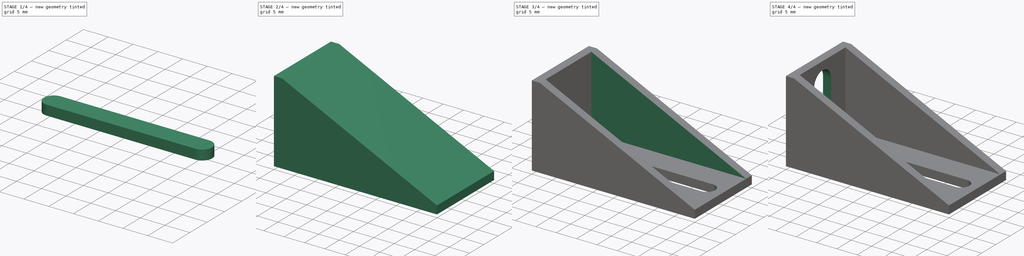
[diagram: build sequence overview — one tinted view per stage of 4, left to right]
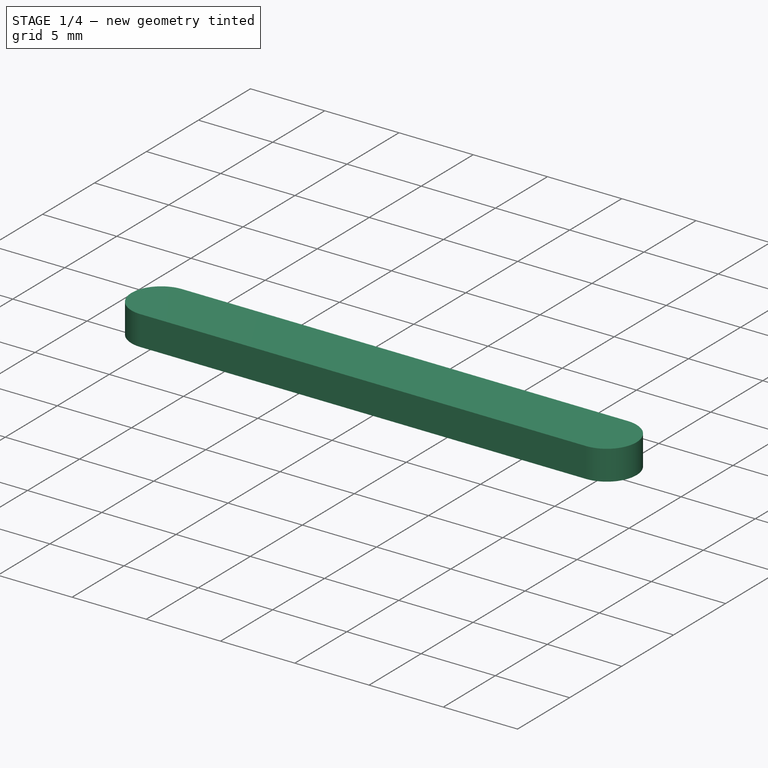
[diagram: stage 1 of 4 — iso view after this stage's code; geometry added in this stage tinted green]
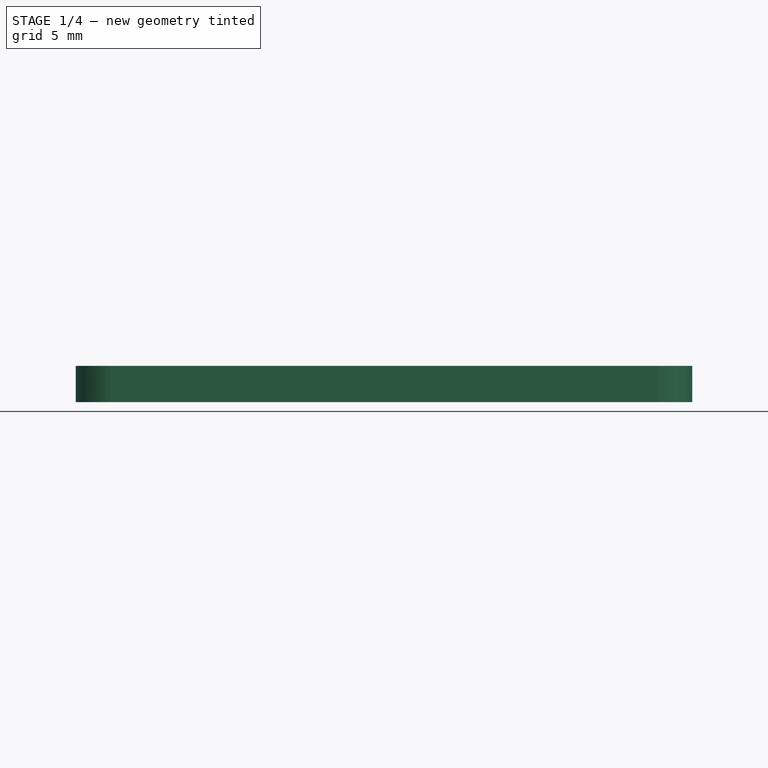
[diagram: stage 1 of 4 — front view after this stage's code; geometry added in this stage tinted green]
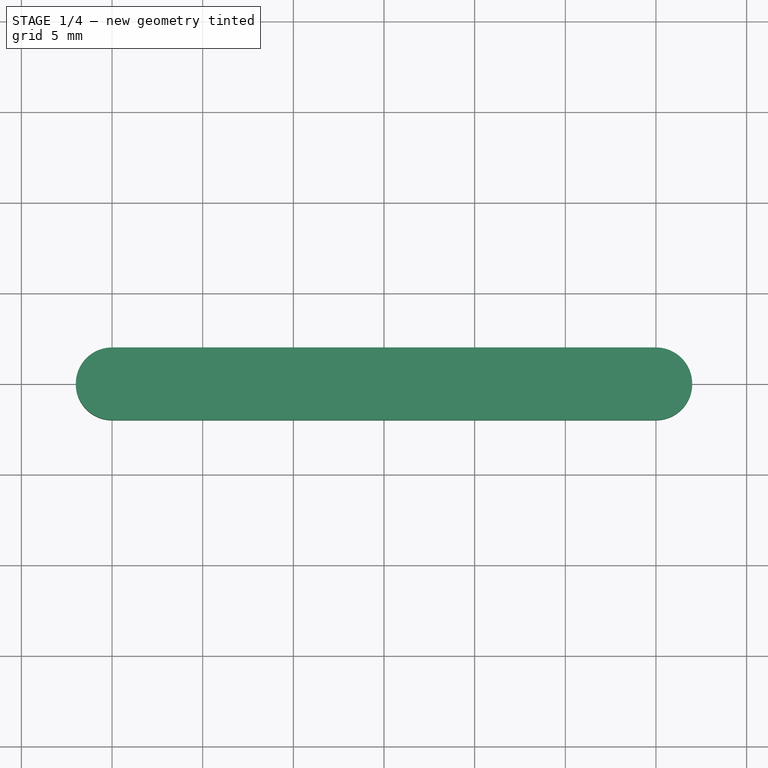
[diagram: stage 1 of 4 — top view after this stage's code; geometry added in this stage tinted green]
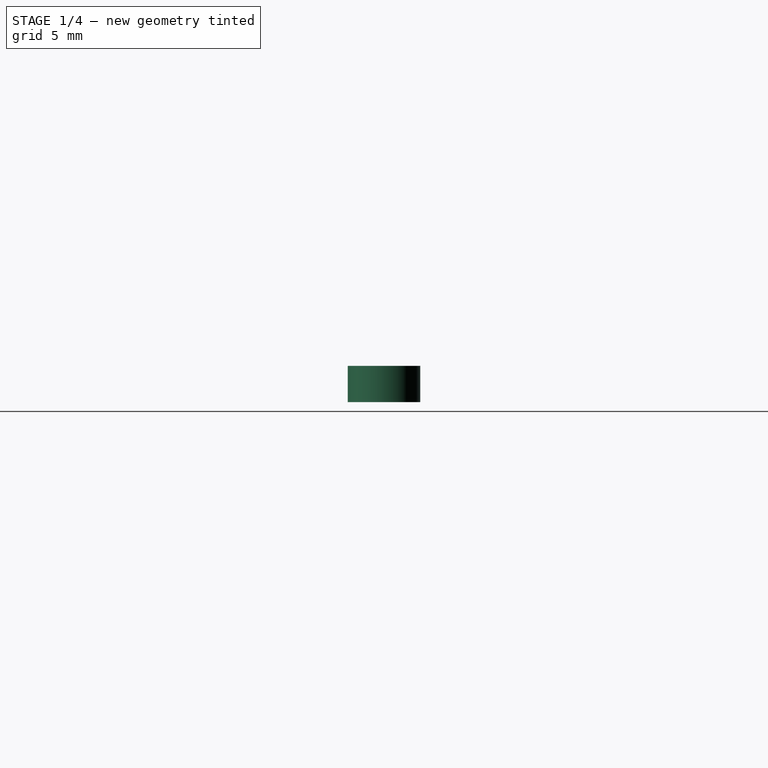
[diagram: stage 1 of 4 — right view after this stage's code; geometry added in this stage tinted green]
FCSTD DOCUMENT  (FreeCAD 0.21R33668 +7 (Git))
Label: ModularBracketLongHoles
License: All rights reserved
LicenseURL: https://en.wikipedia.org/wiki/All_rights_reserved
objects: Part::Cylinder×4, Part::Cut×3, Sketcher::SketchObject×2, PartDesign::Pad×2, PartDesign::Body×2, Part::Box×2, Part::MultiFuse×2, Spreadsheet::Sheet×1
note: 19 computed .brp shape members not serialized (recipe doc carries the construction recipe); baked Part::Feature solids carry a one-line shape summary decoded from their .brp

FEATURE [Part::Cylinder] Cylinder
  Angle = 360
  AttacherType = Attacher::AttachEngine3D
  FirstAngle = 0
  Height = 2
  Radius = 2
  SecondAngle = 0
  expr: Height = <<BracketConfiguration>>.thickness
  expr: Radius = <<BracketConfiguration>>.hd2 / 2
FEATURE [Part::Box] Box  label="Cube"
  AttacherType = Attacher::AttachEngine3D
  Height = 2
  Length = 30
  Placement = pos=(0,-2,0) rot=(0,0,1;0rad)
  Width = 4
  expr: .Placement.Base.y = -(<<BracketConfiguration>>.hd2 / 2)
  expr: Height = <<BracketConfiguration>>.thickness
  expr: Length = <<BracketConfiguration>>.l2 - 3 * <<BracketConfiguration>>.thickness - <<BracketConfiguration>>.hd2
  expr: Width = <<BracketConfiguration>>.hd2
FEATURE [Part::Cylinder] Cylinder001
  Angle = 360
  AttacherType = Attacher::AttachEngine3D
  FirstAngle = 0
  Height = 2
  Placement = pos=(30,0,0) rot=(0,0,1;0rad)
  Radius = 2
  SecondAngle = 0
  expr: .Placement.Base.x = <<BracketConfiguration>>.l2 - 3 * <<BracketConfiguration>>.thickness - <<BracketConfiguration>>.hd2
  expr: Height = <<BracketConfiguration>>.thickness
  expr: Radius = <<BracketConfiguration>>.hd2 / 2
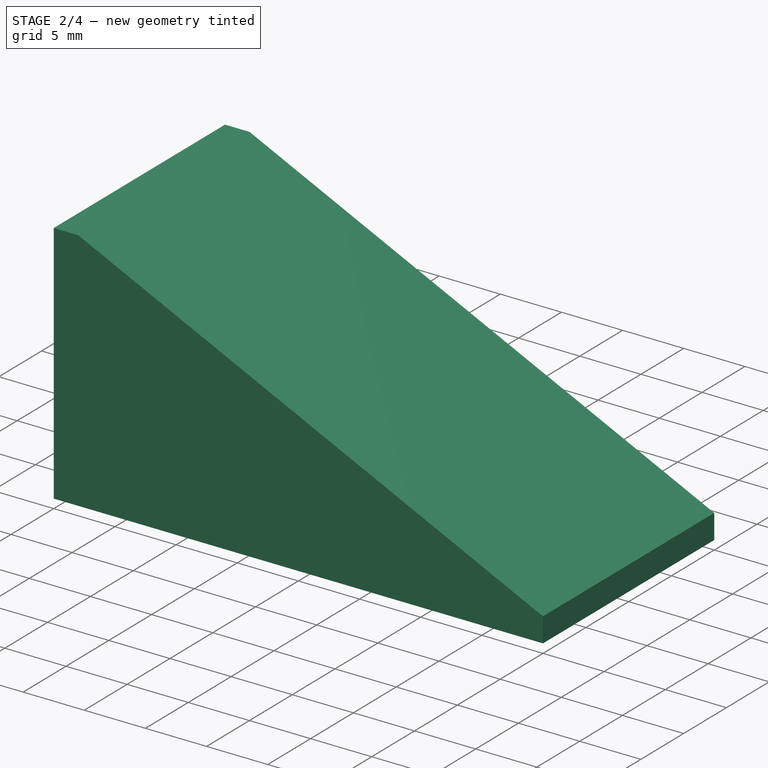
[diagram: stage 2 of 4 — iso view after this stage's code; geometry added in this stage tinted green]
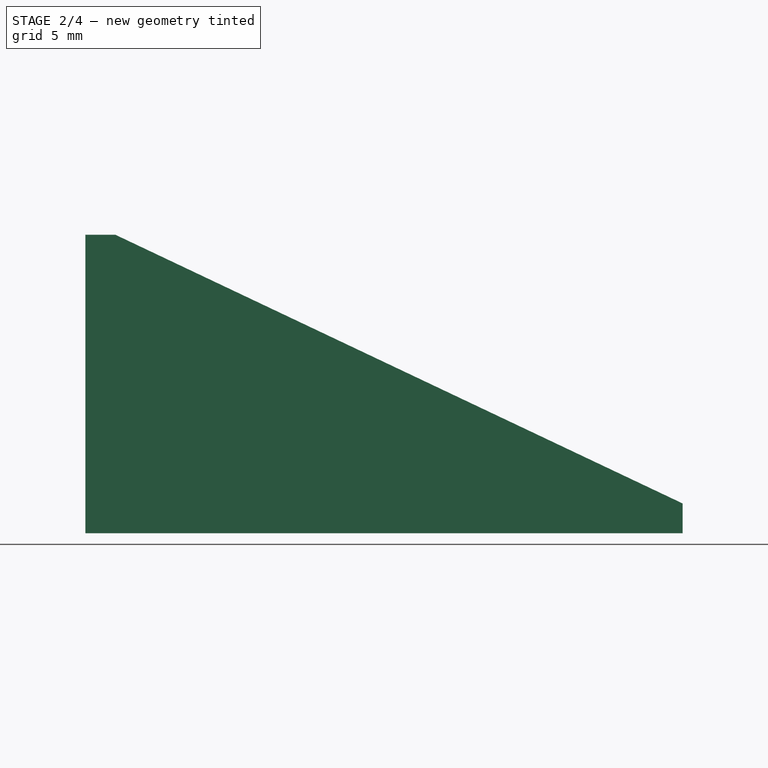
[diagram: stage 2 of 4 — front view after this stage's code; geometry added in this stage tinted green]
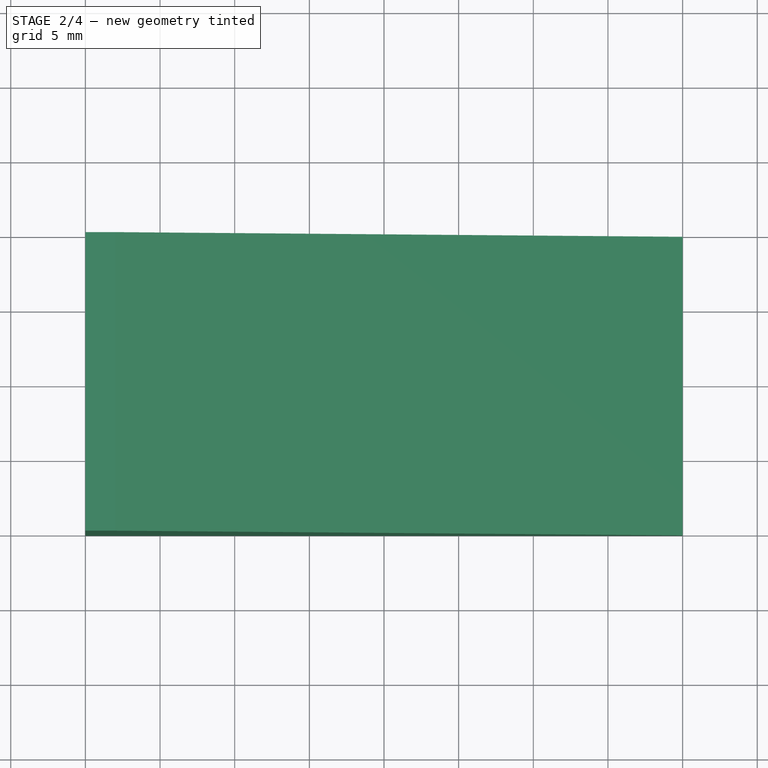
[diagram: stage 2 of 4 — top view after this stage's code; geometry added in this stage tinted green]
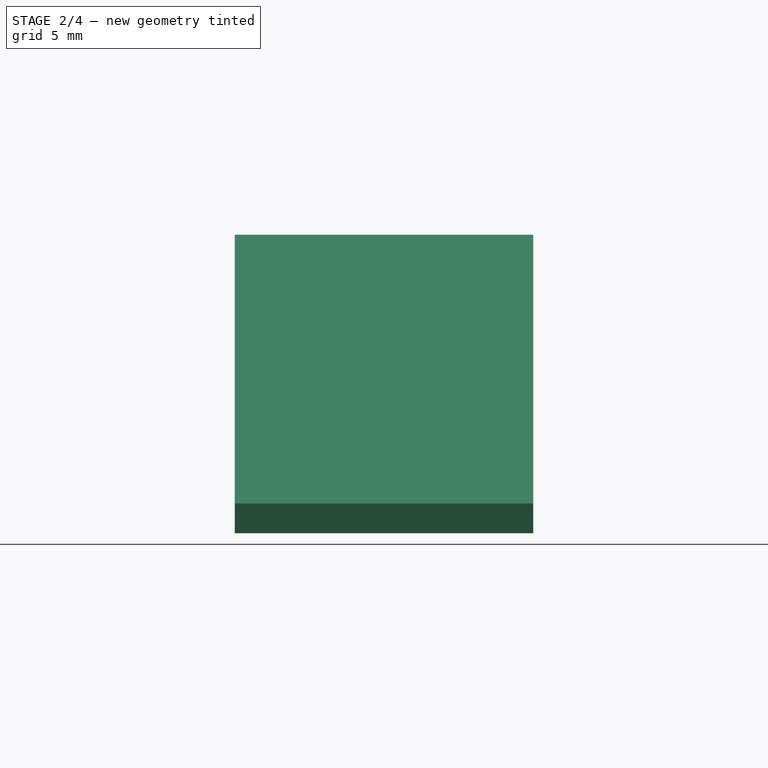
[diagram: stage 2 of 4 — right view after this stage's code; geometry added in this stage tinted green]
FEATURE [Spreadsheet::Sheet] Spreadsheet  label="BracketConfiguration"
  cells = A1='Parameters; A2='Width; B2(width)=20; C2='Total width (on the outside); A3='Length 1; B3(l1)=20; C3='Length in the vertical direction; A4='Length 2; B4(l2)=40; C4='Length in the horizontal direction; A5='Thickness; B5(thickness)=2; C5='Material thickness; A6='Hole diameter 1; B6(hd1)=6; C6='Screw hole diameter on vertical; A7='Hole diameter 2; B7(hd2)=4; C7='Screw hole diameter on horizontal
FEATURE [Sketcher::SketchObject] Sketch
  FullyConstrained = true
  MapMode = 5
  Placement = pos=(0,0,0) rot=(1,0,0;1.5708rad)
  Support = -> [XZ_Plane]
  expr: Constraints[10] = <<BracketConfiguration>>.l2
  expr: Constraints[11] = <<BracketConfiguration>>.l1
  sketch-geometry (5):
    g0: LineSegment StartX=0 StartY=20 StartZ=0 EndX=0 EndY=0 EndZ=0
    g1: LineSegment StartX=0 StartY=0 StartZ=0 EndX=40 EndY=0 EndZ=0
    g2: LineSegment StartX=40 StartY=0 StartZ=0 EndX=40 EndY=2 EndZ=0
    g3: LineSegment StartX=40 StartY=2 StartZ=0 EndX=2 EndY=20 EndZ=0
    g4: LineSegment StartX=2 StartY=20 StartZ=0 EndX=0 EndY=20 EndZ=0
  constraints (14):
    c: PointOnObject(g0,g-2)
    c: Coincident(g0,g-1)
    c: Coincident(g0,g1)
    c: PointOnObject(g1,g-1)
    c: Coincident(g1,g2)
    c: Vertical(g2)
    c: Coincident(g2,g3)
    c: Coincident(g3,g4)
    c: Coincident(g4,g0)
    c: Horizontal(g4)
    c: DistanceX(g1,g1) = 40
    c: DistanceY(g0,g0) = 20
    c: DistanceX(g4,g4) = 2
    c: DistanceY(g2,g2) = 2
FEATURE [PartDesign::Pad] Pad
  Direction = (0,-1,2e-16)
  Length = 20
  Length2 = 10
  Placement = pos=(0,0,0) rot=(1,0,0;1.5708rad)
  Profile = -> Sketch
  ReferenceAxis = -> Sketch [N_Axis]
  Type = 0
  expr: Length = <<BracketConfiguration>>.width
FEATURE [PartDesign::Body] Body
  Group = -> [Sketch,Pad]
  Origin = -> Origin
  Tip = -> Pad
FEATURE [Sketcher::SketchObject] Sketch001
  FullyConstrained = true
  MapMode = 5
  Placement = pos=(0,0,0) rot=(1,0,0;1.5708rad)
  Support = -> [XZ_Plane001]
  expr: Constraints[5] = <<BracketConfiguration>>.thickness
  expr: Constraints[6] = <<BracketConfiguration>>.thickness
  expr: Constraints[7] = <<BracketConfiguration>>.l2 - <<BracketConfiguration>>.thickness
  expr: Constraints[8] = <<BracketConfiguration>>.l1 - <<BracketConfiguration>>.thickness
  sketch-geometry (3):
    g0: LineSegment StartX=2 StartY=20 StartZ=0 EndX=40 EndY=2 EndZ=0
    g1: LineSegment StartX=40 StartY=2 StartZ=0 EndX=2 EndY=2 EndZ=0
    g2: LineSegment StartX=2 StartY=20 StartZ=0 EndX=2 EndY=2 EndZ=0
  constraints (9):
    c: Coincident(g0,g1)
    c: Horizontal(g1)
    c: Coincident(g2,g0)
    c: Coincident(g2,g1)
    c: Vertical(g2)
    c: DistanceX(g-1,g1) = 2
    c: DistanceY(g-1,g1) = 2
    c: DistanceX(g1,g1) = 38
    c: DistanceY(g2,g2) = 18
FEATURE [PartDesign::Pad] Pad001
  Direction = (0,-1,2e-16)
  Length = 16
  Length2 = 10
  Placement = pos=(0,0,0) rot=(1,0,0;1.5708rad)
  Profile = -> Sketch001
  ReferenceAxis = -> Sketch001 [N_Axis]
  Type = 0
  expr: Length = <<BracketConfiguration>>.width - 2 * <<BracketConfiguration>>.thickness
FEATURE [Part::MultiFuse] Fusion  label="LongHole1"
  Placement = pos=(6,-10,0) rot=(0,0,1;0rad)
  Shapes = -> [Cylinder001,Cylinder,Box]
  expr: .Placement.Base.x = <<BracketConfiguration>>.hd2 / 2 + 2 * <<BracketConfiguration>>.thickness
  expr: .Placement.Base.y = -<<BracketConfiguration>>.width / 2
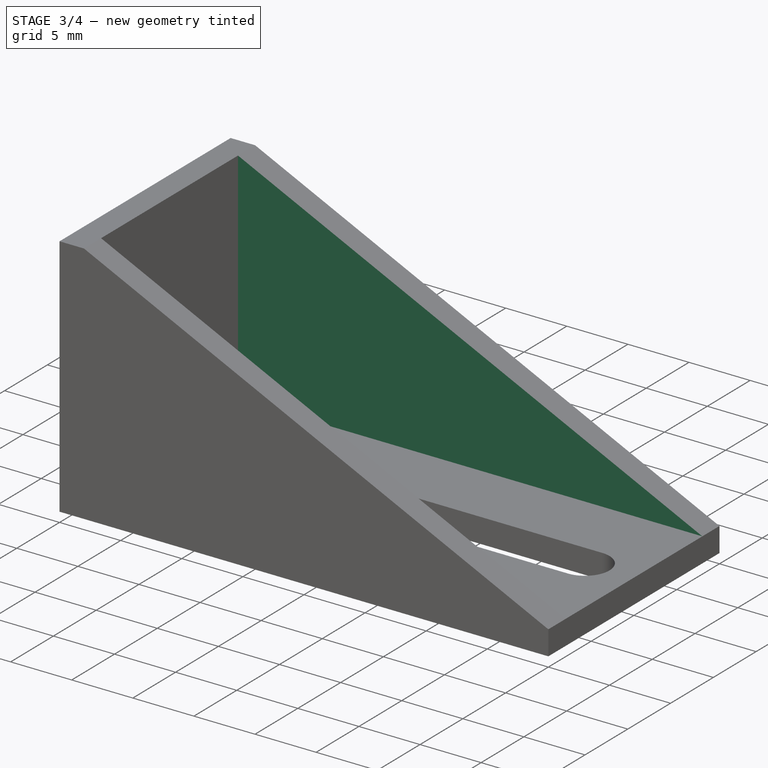
[diagram: stage 3 of 4 — iso view after this stage's code; geometry added in this stage tinted green]
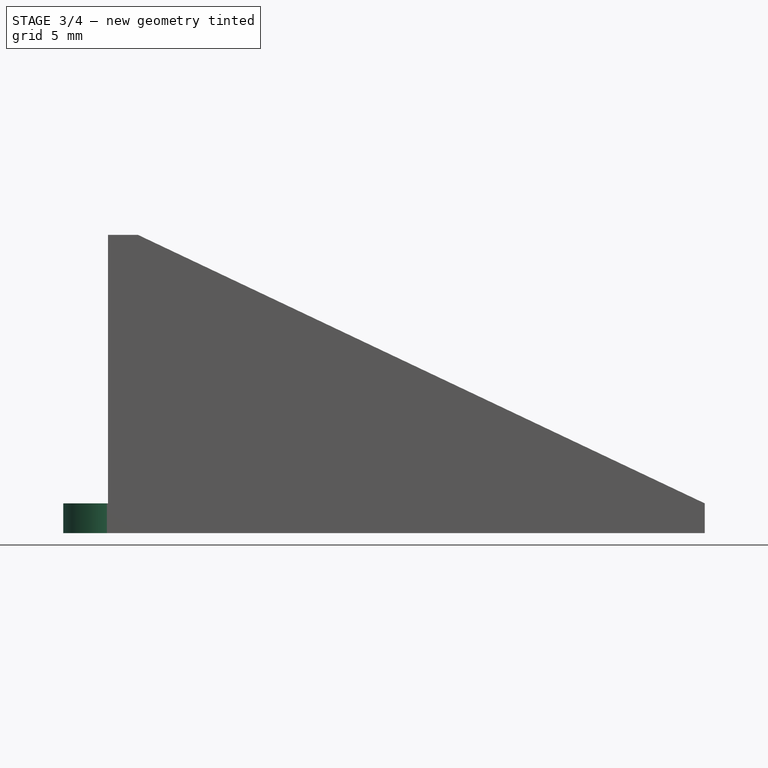
[diagram: stage 3 of 4 — front view after this stage's code; geometry added in this stage tinted green]
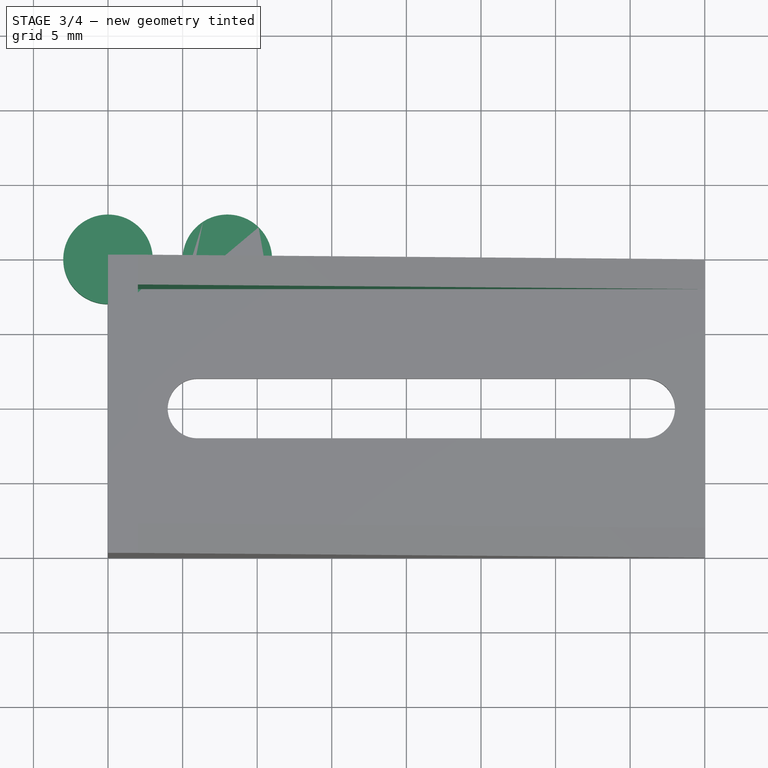
[diagram: stage 3 of 4 — top view after this stage's code; geometry added in this stage tinted green]
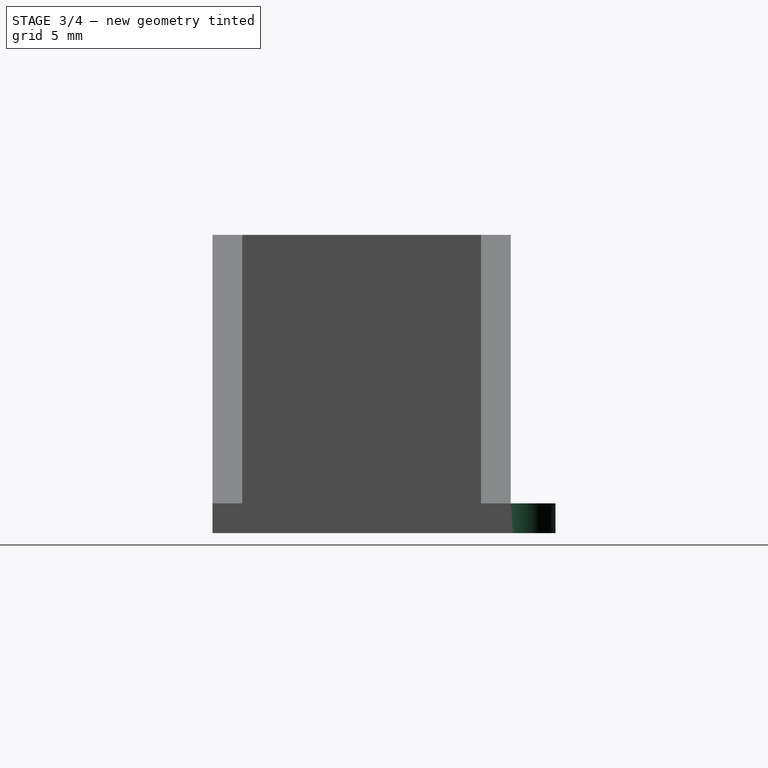
[diagram: stage 3 of 4 — right view after this stage's code; geometry added in this stage tinted green]
FEATURE [PartDesign::Body] Body001
  Group = -> [Sketch001,Pad001]
  Origin = -> Origin001
  Placement = pos=(0,-2,0) rot=(0,0,1;0rad)
  Tip = -> Pad001
  expr: .Placement.Base.y = -<<BracketConfiguration>>.thickness
FEATURE [Part::Cut] Cut
  Base = -> Body
  Tool = -> Body001
FEATURE [Part::Cylinder] Cylinder002
  Angle = 360
  AttacherType = Attacher::AttachEngine3D
  FirstAngle = 0
  Height = 2
  Radius = 3
  SecondAngle = 0
  expr: Height = <<BracketConfiguration>>.thickness
  expr: Radius = <<BracketConfiguration>>.hd1 / 2
FEATURE [Part::Cylinder] Cylinder003
  Angle = 360
  AttacherType = Attacher::AttachEngine3D
  FirstAngle = 0
  Height = 2
  Placement = pos=(8,0,0) rot=(0,0,1;0rad)
  Radius = 3
  SecondAngle = 0
  expr: .Placement.Base.x = <<BracketConfiguration>>.l1 - 3 * <<BracketConfiguration>>.thickness - <<BracketConfiguration>>.hd1
  expr: Height = <<BracketConfiguration>>.thickness
  expr: Radius = <<BracketConfiguration>>.hd1 / 2
FEATURE [Part::Cut] Cut001
  Base = -> Cut
  Tool = -> Fusion
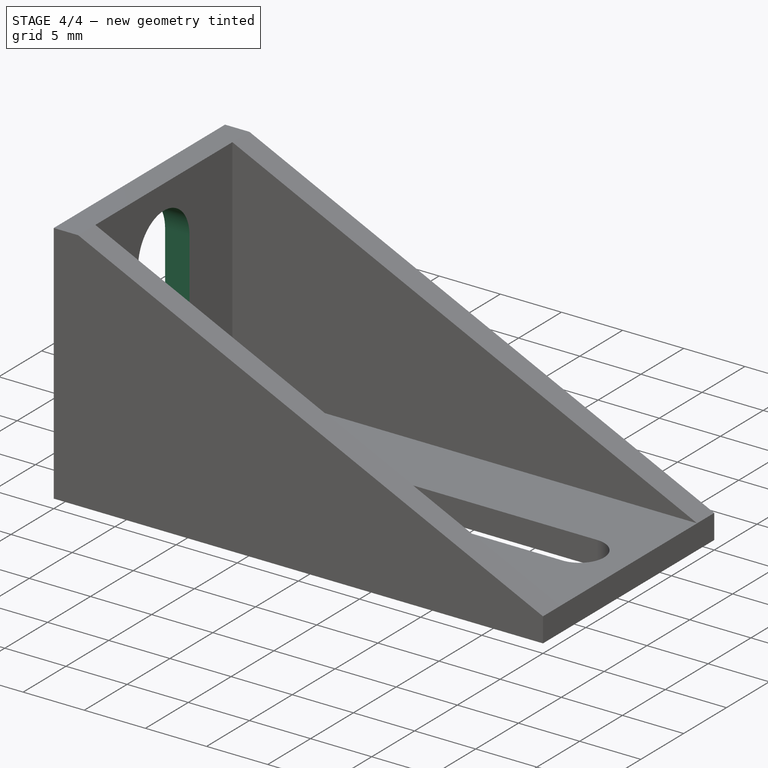
[diagram: stage 4 of 4 — iso view after this stage's code; geometry added in this stage tinted green]
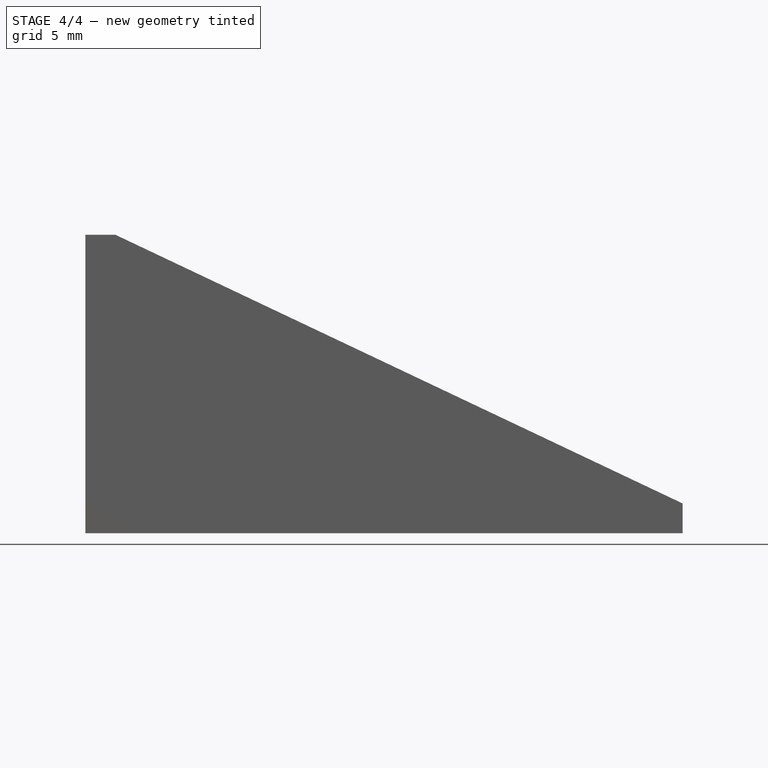
[diagram: stage 4 of 4 — front view after this stage's code; geometry added in this stage tinted green]
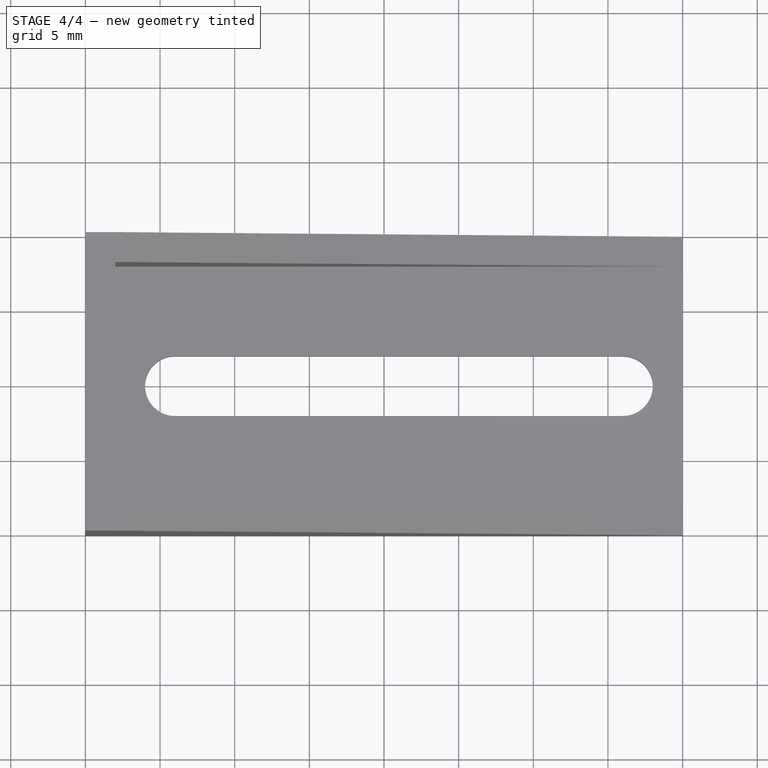
[diagram: stage 4 of 4 — top view after this stage's code; geometry added in this stage tinted green]
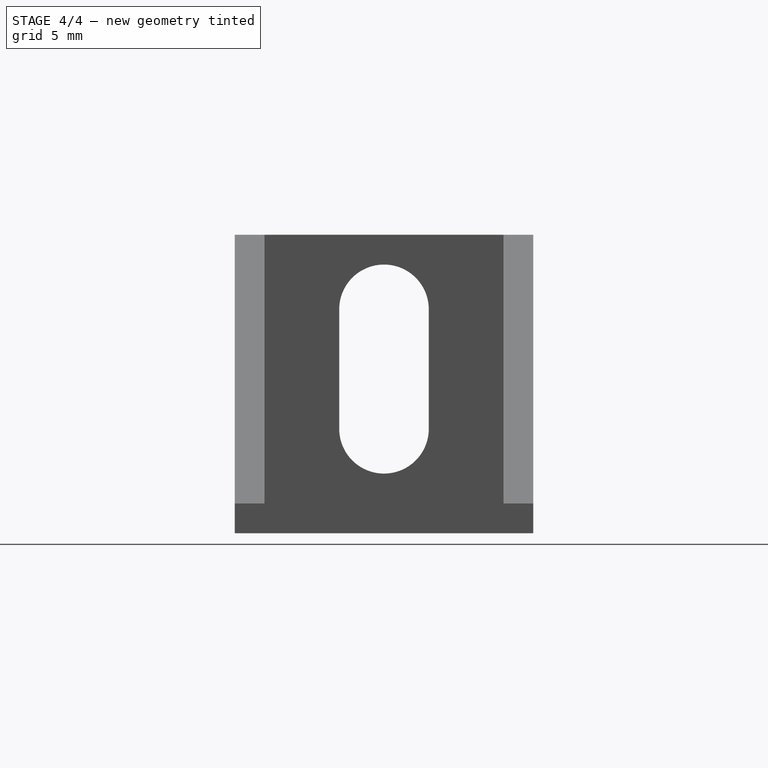
[diagram: stage 4 of 4 — right view after this stage's code; geometry added in this stage tinted green]
FEATURE [Part::Box] Box001  label="Cube001"
  AttacherType = Attacher::AttachEngine3D
  Height = 2
  Length = 8
  Placement = pos=(0,-3,0) rot=(0,0,1;0rad)
  Width = 6
  expr: .Placement.Base.y = -(<<BracketConfiguration>>.hd1 / 2)
  expr: Height = <<BracketConfiguration>>.thickness
  expr: Length = <<BracketConfiguration>>.l1 - 3 * <<BracketConfiguration>>.thickness - <<BracketConfiguration>>.hd1
  expr: Width = <<BracketConfiguration>>.hd1
FEATURE [Part::MultiFuse] Fusion001  label="LongHole002"
  Placement = pos=(2,-10,7) rot=(0,1,0;-1.5708rad)
  Shapes = -> [Cylinder003,Cylinder002,Box001]
  expr: .Placement.Base.x = <<BracketConfiguration>>.thickness
  expr: .Placement.Base.y = -<<BracketConfiguration>>.width / 2
  expr: .Placement.Base.z = <<BracketConfiguration>>.hd1 / 2 + 2 * <<BracketConfiguration>>.thickness
FEATURE [Part::Cut] Cut002  label="ModularMountingBracket"
  Base = -> Cut001
  Tool = -> Fusion001
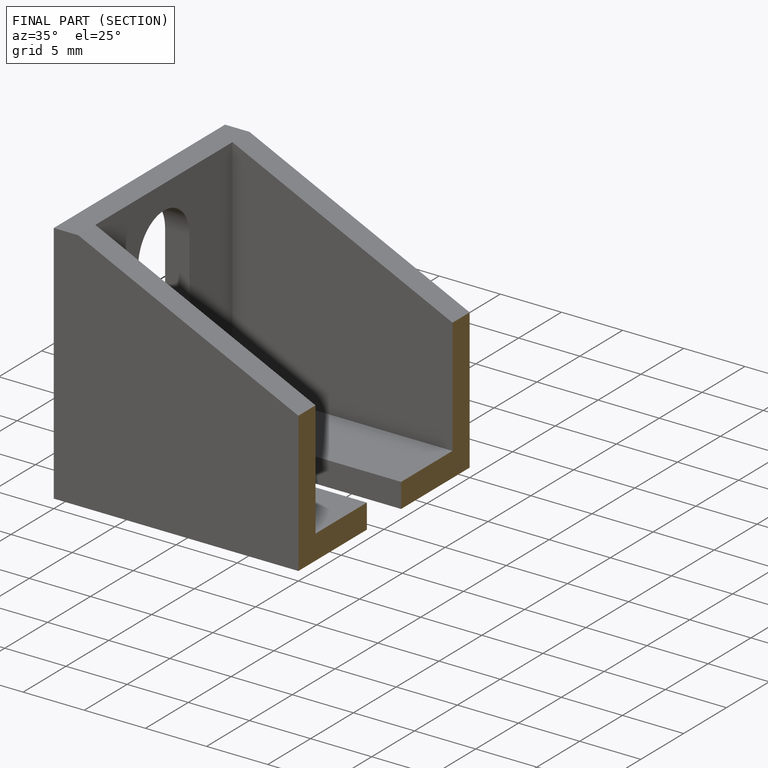
[diagram: finished part — half-section view (interior)]
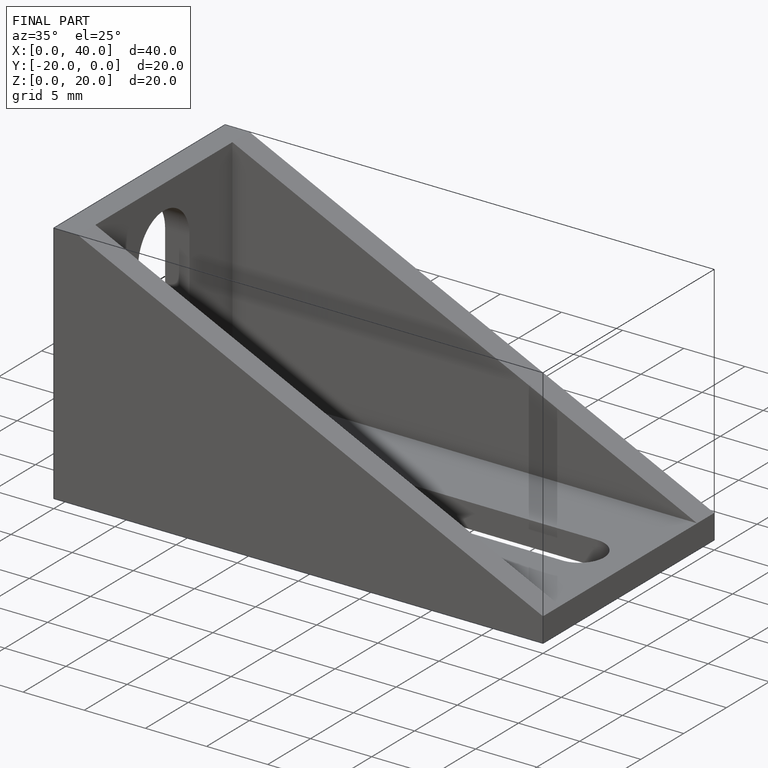
[diagram: finished part — iso view with bounding-box wireframe]
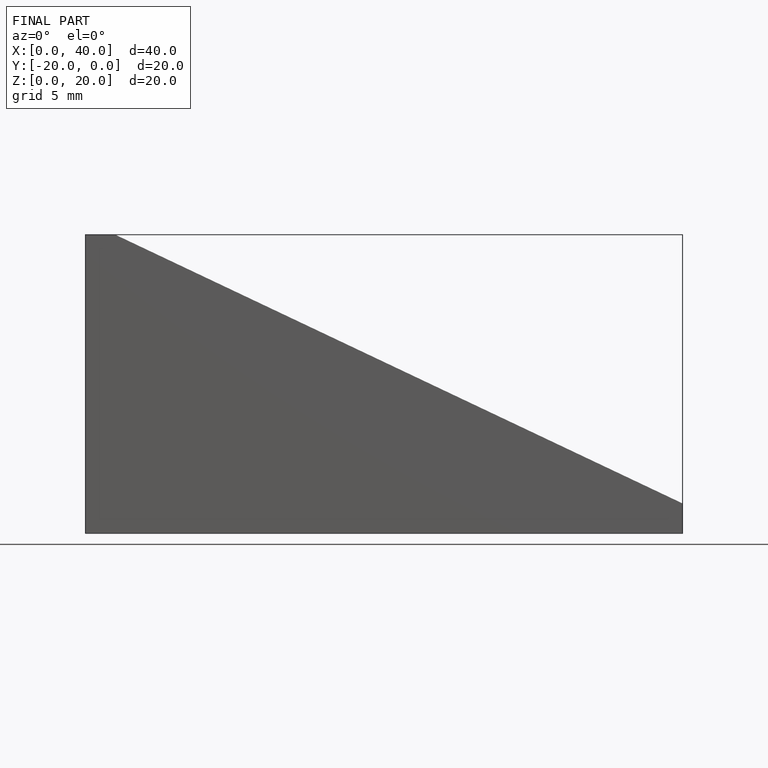
[diagram: finished part — front view with bounding-box wireframe]
